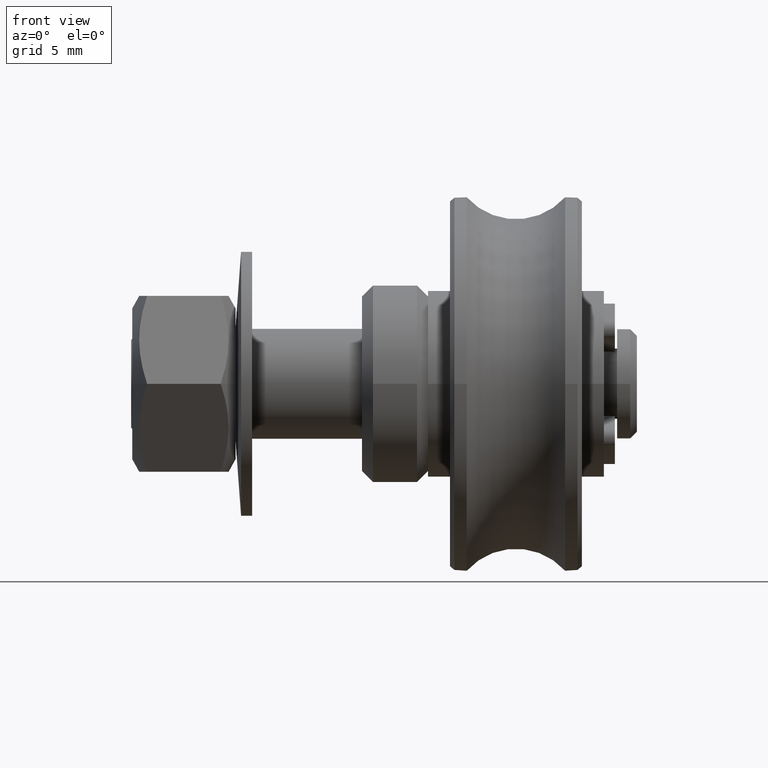
[diagram: clean part render]
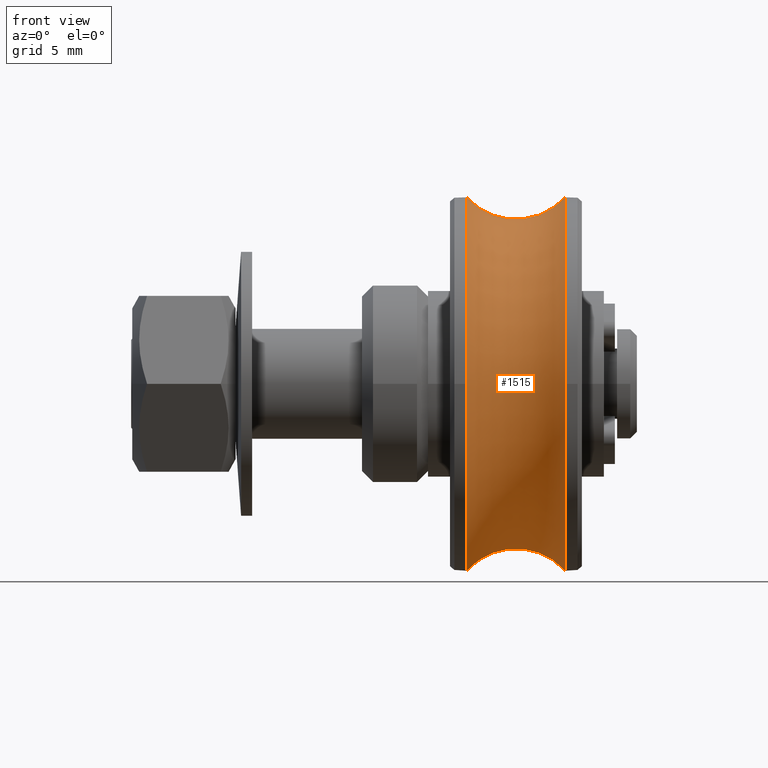
[diagram: same view with one face highlighted and labeled with its STEP entity id]
A machine part, front view. The second image highlights one B-rep face of the part: STEP entity #1515.
In plain terms, the highlighted toroidal blend (fillet) surface has major radius 10.5 mm and minor (blend) radius 3 mm.
Its self-contained STEP definition (entity closure, byte-faithful):
#43=TOROIDAL_SURFACE('',#1793,10.5,3.);
#206=FACE_OUTER_BOUND('',#309,.T.);
#309=EDGE_LOOP('',(#1238,#1239,#1240,#1241,#1242,#1243));
#620=CIRCLE('',#1778,8.5);
#621=CIRCLE('',#1779,8.5);
#625=CIRCLE('',#1785,8.5);
#626=CIRCLE('',#1786,8.5);
#630=CIRCLE('',#1794,3.);
#733=VERTEX_POINT('',#2592);
#734=VERTEX_POINT('',#2593);
#738=VERTEX_POINT('',#2606);
#739=VERTEX_POINT('',#2608);
#905=EDGE_CURVE('',#733,#734,#620,.T.);
#907=EDGE_CURVE('',#734,#733,#621,.T.);
#913=EDGE_CURVE('',#738,#739,#625,.T.);
#914=EDGE_CURVE('',#739,#738,#626,.T.);
#919=EDGE_CURVE('',#734,#739,#630,.T.);
#1238=ORIENTED_EDGE('',*,*,#905,.T.);
#1239=ORIENTED_EDGE('',*,*,#919,.T.);
#1240=ORIENTED_EDGE('',*,*,#913,.F.);
#1241=ORIENTED_EDGE('',*,*,#914,.F.);
#1242=ORIENTED_EDGE('',*,*,#919,.F.);
#1243=ORIENTED_EDGE('',*,*,#907,.T.);
#1515=ADVANCED_FACE('',(#206),#43,.F.);
#1778=AXIS2_PLACEMENT_3D('',#2594,#2116,#2117);
#1779=AXIS2_PLACEMENT_3D('',#2596,#2119,#2120);
#1785=AXIS2_PLACEMENT_3D('',#2609,#2133,#2134);
#1786=AXIS2_PLACEMENT_3D('',#2610,#2135,#2136);
#1793=AXIS2_PLACEMENT_3D('',#2621,#2150,#2151);
#1794=AXIS2_PLACEMENT_3D('',#2622,#2152,#2153);
#2116=DIRECTION('center_axis',(1.,0.,0.));
#2117=DIRECTION('ref_axis',(0.,1.,0.));
#2119=DIRECTION('center_axis',(1.,0.,0.));
#2120=DIRECTION('ref_axis',(0.,1.,0.));
#2133=DIRECTION('center_axis',(1.,0.,0.));
#2134=DIRECTION('ref_axis',(0.,1.,0.));
#2135=DIRECTION('center_axis',(1.,0.,0.));
#2136=DIRECTION('ref_axis',(0.,1.,0.));
#2150=DIRECTION('center_axis',(1.,0.,0.));
#2151=DIRECTION('ref_axis',(0.,0.,-1.));
#2152=DIRECTION('center_axis',(0.,-1.,-1.22464679914735E-16));
#2153=DIRECTION('ref_axis',(0.,-1.22464679914735E-16,1.));
#2592=CARTESIAN_POINT('',(-2.23606797749979,-8.5,-1.04094977927525E-15));
#2593=CARTESIAN_POINT('',(-2.23606797749979,-1.04094977927525E-15,8.5));
#2594=CARTESIAN_POINT('Origin',(-2.23606797749979,0.,0.));
#2596=CARTESIAN_POINT('Origin',(-2.23606797749979,0.,0.));
#2606=CARTESIAN_POINT('',(2.23606797749979,-8.5,-1.04094977927525E-15));
#2608=CARTESIAN_POINT('',(2.23606797749979,-1.04094977927525E-15,8.5));
#2609=CARTESIAN_POINT('Origin',(2.23606797749979,0.,0.));
#2610=CARTESIAN_POINT('Origin',(2.23606797749979,0.,0.));
#2621=CARTESIAN_POINT('Origin',(0.,0.,0.));
#2622=CARTESIAN_POINT('Origin',(0.,-1.28587913910472E-15,10.5));